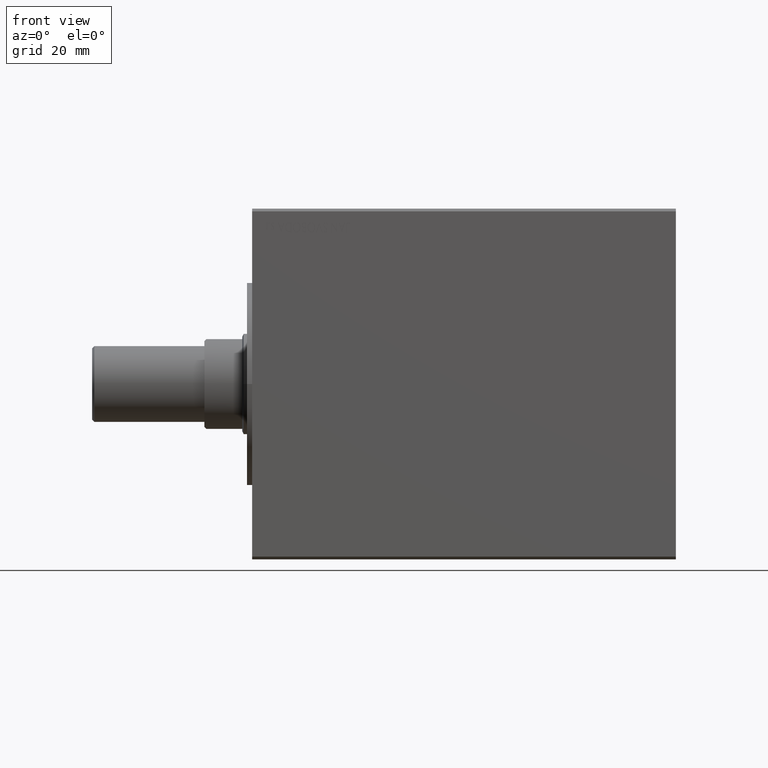
[diagram: clean part render]
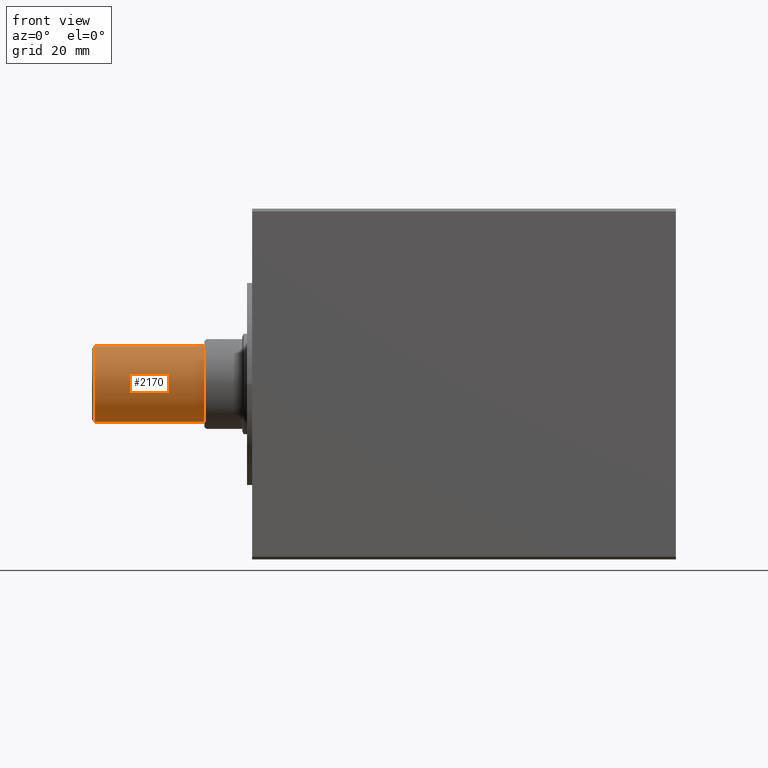
[diagram: same view with one face highlighted and labeled with its STEP entity id]
A machine part, front view. The second image highlights one B-rep face of the part: STEP entity #2170.
In plain terms, the highlighted cylindrical surface (partial cylindrical patch) has radius 13.5 mm, axis along (1, -0, -0).
Its self-contained STEP definition (entity closure, byte-faithful):
#2170 = ADVANCED_FACE ( 'NONE', ( #32677 ), #15060, .T. ) ;
#3425 = CARTESIAN_POINT ( 'NONE',  ( 13.50000000000000000, 0.000000000000000000, -39.19999999999998153 ) ) ;
#4951 = DIRECTION ( 'NONE',  ( 0.000000000000000000, 0.000000000000000000, 1.000000000000000000 ) ) ;
#5653 = CARTESIAN_POINT ( 'NONE',  ( 0.000000000000000000, 0.000000000000000000, -39.19999999999998153 ) ) ;
#6063 = EDGE_CURVE ( 'NONE', #21422, #37027, #15224, .T. ) ;
#7007 = ORIENTED_EDGE ( 'NONE', *, *, #6063, .F. ) ;
#8017 = ORIENTED_EDGE ( 'NONE', *, *, #26156, .F. ) ;
#8681 = AXIS2_PLACEMENT_3D ( 'NONE', #32237, #25089, #28235 ) ;
#10000 = ORIENTED_EDGE ( 'NONE', *, *, #25062, .T. ) ;
#10139 = VECTOR ( 'NONE', #4951, 1000.000000000000000 ) ;
#10447 = CARTESIAN_POINT ( 'NONE',  ( -13.50000000000000000, 1.653273178848926867E-15, -39.19999999999998153 ) ) ;
#12374 = DIRECTION ( 'NONE',  ( -0.000000000000000000, -0.000000000000000000, 1.000000000000000000 ) ) ;
#14657 = CARTESIAN_POINT ( 'NONE',  ( -13.50000000000000000, 1.653273178848926867E-15, 0.000000000000000000 ) ) ;
#15060 = CYLINDRICAL_SURFACE ( 'NONE', #8681, 13.50000000000000000 ) ;
#15224 = LINE ( 'NONE', #41798, #10139 ) ;
#15999 = EDGE_CURVE ( 'NONE', #36342, #27255, #37758, .T. ) ;
#17647 = DIRECTION ( 'NONE',  ( 0.000000000000000000, 0.000000000000000000, 1.000000000000000000 ) ) ;
#17872 = CARTESIAN_POINT ( 'NONE',  ( 13.50000000000000000, 0.000000000000000000, -40.00000000000000000 ) ) ;
#18729 = AXIS2_PLACEMENT_3D ( 'NONE', #5653, #12374, #26625 ) ;
#19430 = CIRCLE ( 'NONE', #18729, 13.50000000000000000 ) ;
#21422 = VERTEX_POINT ( 'NONE', #10447 ) ;
#21592 = CARTESIAN_POINT ( 'NONE',  ( 13.50000000000000000, 0.000000000000000000, 0.000000000000000000 ) ) ;
#21631 = AXIS2_PLACEMENT_3D ( 'NONE', #32139, #28787, #42626 ) ;
#22664 = VECTOR ( 'NONE', #17647, 1000.000000000000000 ) ;
#25062 = EDGE_CURVE ( 'NONE', #21422, #36342, #19430, .T. ) ;
#25089 = DIRECTION ( 'NONE',  ( 0.000000000000000000, 0.000000000000000000, 1.000000000000000000 ) ) ;
#26156 = EDGE_CURVE ( 'NONE', #37027, #27255, #28053, .T. ) ;
#26206 = ORIENTED_EDGE ( 'NONE', *, *, #15999, .T. ) ;
#26625 = DIRECTION ( 'NONE',  ( 1.000000000000000000, 0.000000000000000000, 0.000000000000000000 ) ) ;
#27255 = VERTEX_POINT ( 'NONE', #21592 ) ;
#28053 = CIRCLE ( 'NONE', #21631, 13.50000000000000000 ) ;
#28235 = DIRECTION ( 'NONE',  ( 1.000000000000000000, 0.000000000000000000, 0.000000000000000000 ) ) ;
#28787 = DIRECTION ( 'NONE',  ( 0.000000000000000000, 0.000000000000000000, 1.000000000000000000 ) ) ;
#32139 = CARTESIAN_POINT ( 'NONE',  ( 0.000000000000000000, 0.000000000000000000, 0.000000000000000000 ) ) ;
#32237 = CARTESIAN_POINT ( 'NONE',  ( 0.000000000000000000, 0.000000000000000000, -40.00000000000000000 ) ) ;
#32677 = FACE_OUTER_BOUND ( 'NONE', #36163, .T. ) ;
#36163 = EDGE_LOOP ( 'NONE', ( #7007, #10000, #26206, #8017 ) ) ;
#36342 = VERTEX_POINT ( 'NONE', #3425 ) ;
#37027 = VERTEX_POINT ( 'NONE', #14657 ) ;
#37758 = LINE ( 'NONE', #17872, #22664 ) ;
#41798 = CARTESIAN_POINT ( 'NONE',  ( -13.50000000000000000, 1.653273178848926867E-15, -40.00000000000000000 ) ) ;
#42626 = DIRECTION ( 'NONE',  ( 1.000000000000000000, 0.000000000000000000, 0.000000000000000000 ) ) ;